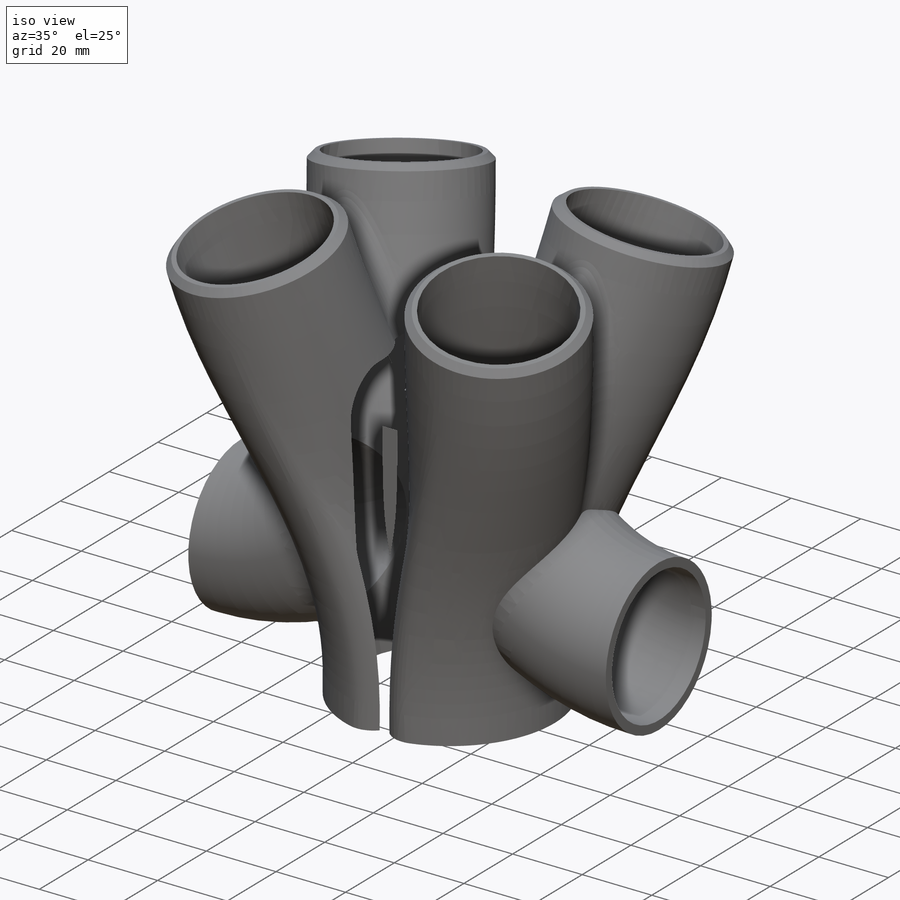
[diagram: iso view]
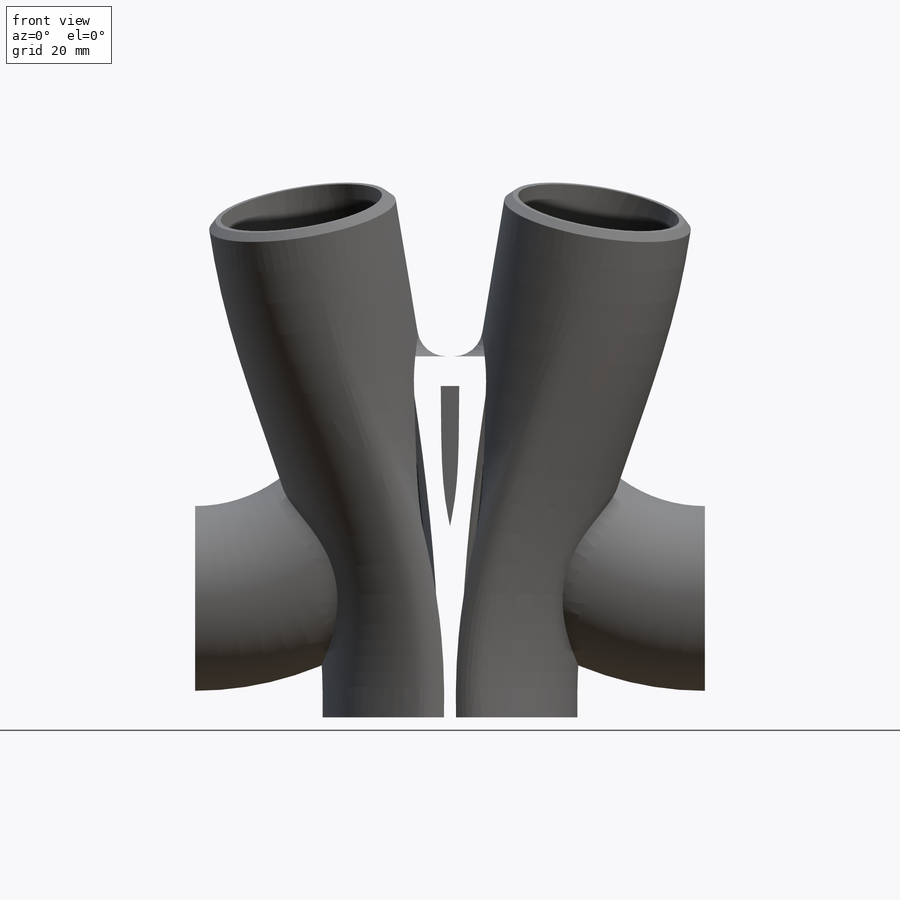
[diagram: front view]
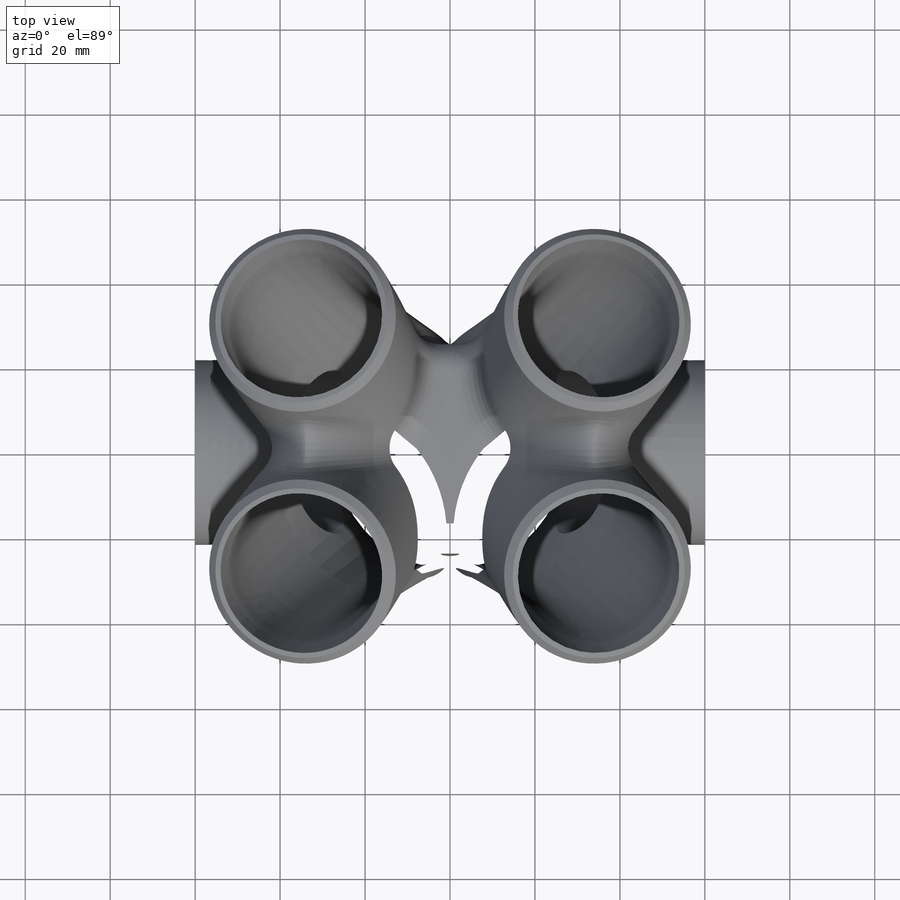
[diagram: top view]
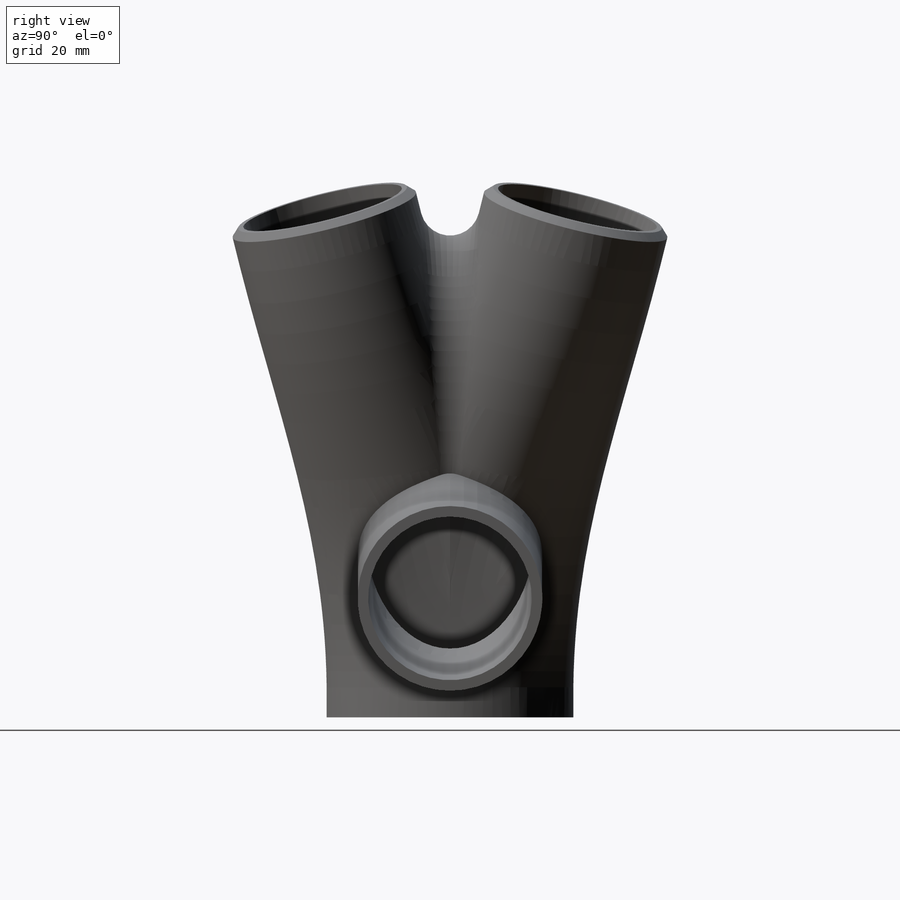
[diagram: right view]
SOLIDWORKS PART (.sldprt)
format: sldprt  version: not decoded by parser v0  size: 1,036,288 bytes
history: native  units: mm
features: sketch x10, plane x8, mirror x3, cut_extrude x2, material x1, shell x1, sweep x1, extrude x1, chamfer x1, fillet x1 (+13 scaffold rows collapsed)
feature tree (42):
  scaffold x13  (default folders/planes/origin — collapsed)
  material  "Material <nicht festgelegt>"
  plane  "Ebene vorne"
  plane  "Ebene oben"
  plane  "Ebene rechts"
  sketch  "innenkontur unten"  dims[D1=54.0mm D3=4.0mm D2=2.5mm D4=15.0mm]
  plane  "Ebene1"  Offset=120mm
  sketch  "Skizze2"  dims[D1=42.4mm D2=30.0mm D3=35.0mm]
  plane  "Ebene O-O"
  sketch  "38,5 oben"  dims[D1=38.5mm]
  plane  "Ebene O-U"  Offset=10mm
  sketch  "38,5 unten"  dims[D1=38.5mm]
  plane  "Ebene U-O"  Offset=7.5mm
  sketch  "Innenkontur oben"  dims[c1.D1=27.0mm c1.D3=4.0mm c1.D2=2.5mm c2.D1=2.0mm]
  shell  "Wandung 3mm"  Thickness=3mm
  plane  "Ebene3"  Offset=60mm
  sketch  "Skizze14"  dims[c1.D1=38.5mm c1.D2=38.5mm c1.D6=2.0mm c2.D2=2.5mm c2.D3=55.0mm c2.D4=28.0mm c2.D5=2.5mm]
  sketch  "Skizze16"  dims[c1.D1=~55.269707mm c1.D2=~51.791258mm c2.D2=67.0deg]
  sweep  "Austragung1"
  sketch  "Skizze6"
  cut_extrude  "Schnitt-Linear austragen1"  Depth=73mm
  mirror  "Spiegeln3"
  mirror  "Spiegeln7"
  sketch  "Skizze8"
  cut_extrude  "Schnitt-Linear austragen2"  Depth=100mm
  sketch  "Skizze9"  dims[D1=85.0mm]
  extrude  "Aufsatz-Linear austragen1"  [1 undecoded]
  mirror  "Spiegeln6"
  chamfer  "Fase1"  Distance=1.8mm Angle=45deg
  fillet  "Verrundung1"  Radius=7mm
decode coverage: 13 of 20 modeling features carry decoded parameters
note: ~ marks probable driven/reference dimensions
note: 1 parameter value undecoded
note: suppression state not decoded; provenance and decode notes live in map.json
